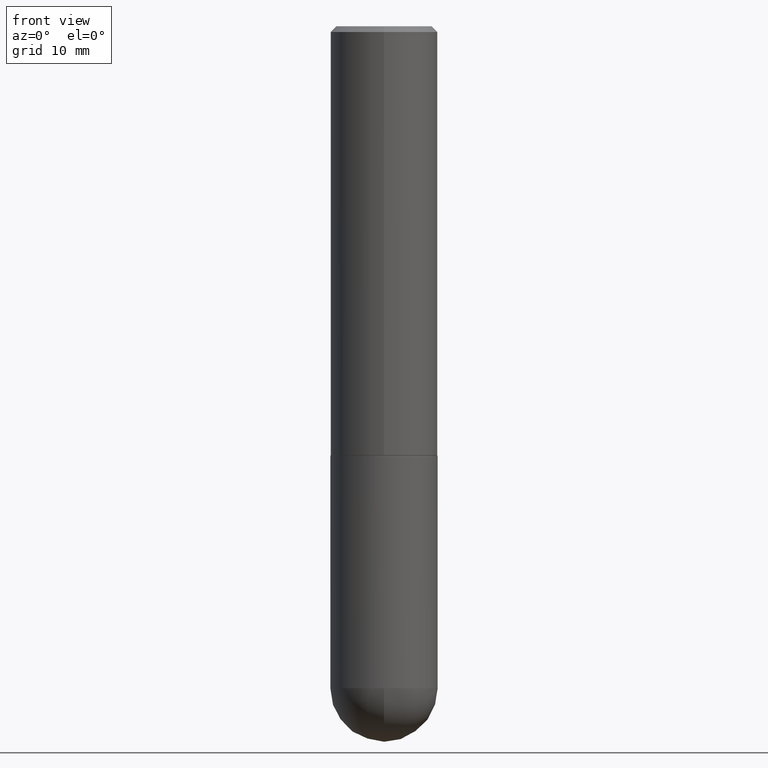
[diagram: clean part render]
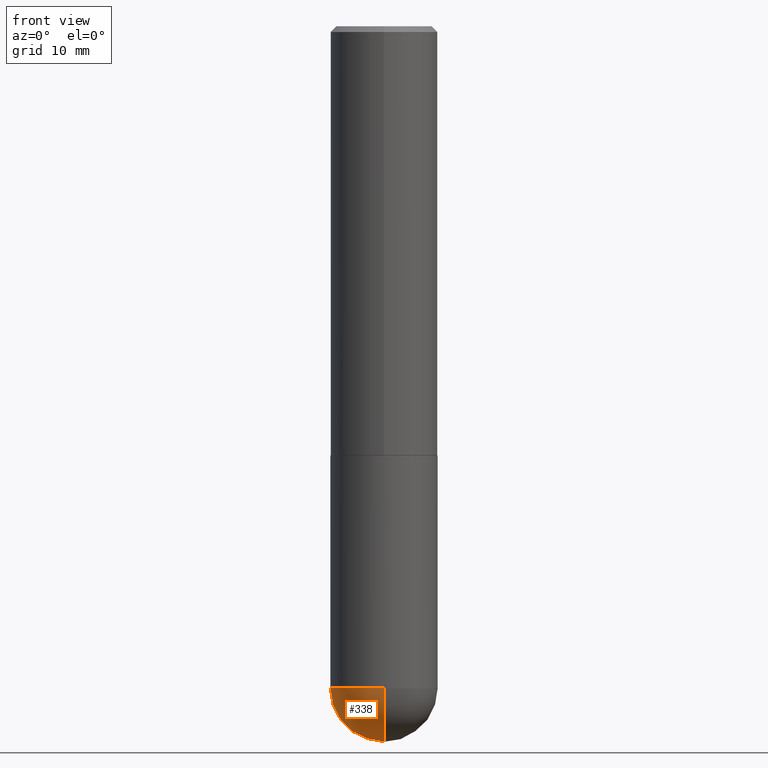
[diagram: same view with one face highlighted and labeled with its STEP entity id]
A machine part, front view. The second image highlights one B-rep face of the part: STEP entity #338.
In plain terms, the highlighted spherical surface has radius 4.7625 mm.
Its self-contained STEP definition (entity closure, byte-faithful):
#2 = DIRECTION ( 'NONE',  ( -1.000000000000000000, 7.105427357601001070E-15, -4.926315508542082329E-29 ) ) ;
#6 = EDGE_CURVE ( 'NONE', #332, #64, #237, .T. ) ;
#8 = CIRCLE ( 'NONE', #225, 0.1875000000000003331 ) ;
#23 = EDGE_LOOP ( 'NONE', ( #132, #314, #334, #197 ) ) ;
#32 = CARTESIAN_POINT ( 'NONE',  ( 5.655146614303128380E-29, -8.074050596074775072E-15, -2.312500000000000000 ) ) ;
#36 = SPHERICAL_SURFACE ( 'NONE', #311, 0.1875000000000003331 ) ;
#64 = VERTEX_POINT ( 'NONE', #82 ) ;
#67 = DIRECTION ( 'NONE',  ( -2.445468806185136597E-29, 3.491481338843145583E-15, 1.000000000000000000 ) ) ;
#68 = CARTESIAN_POINT ( 'NONE',  ( 5.655146614303128380E-29, -8.074050596074775072E-15, -2.312500000000000000 ) ) ;
#71 = VERTEX_POINT ( 'NONE', #213 ) ;
#82 = CARTESIAN_POINT ( 'NONE',  ( 1.309305502066231017E-15, 0.1874999999999918954, -2.312500000000000444 ) ) ;
#90 = DIRECTION ( 'NONE',  ( -2.445468806185136597E-29, 3.491481338843145583E-15, 1.000000000000000000 ) ) ;
#97 = DIRECTION ( 'NONE',  ( 6.982962677686265922E-15, 1.000000000000000000, 0.000000000000000000 ) ) ;
#99 = CARTESIAN_POINT ( 'NONE',  ( 5.324026836389243254E-29, -8.548232964214825368E-15, -2.312500000000000000 ) ) ;
#102 = CIRCLE ( 'NONE', #391, 0.1875000000000000555 ) ;
#121 = DIRECTION ( 'NONE',  ( 1.000000000000000000, -6.982962677686270655E-15, 0.000000000000000000 ) ) ;
#124 = EDGE_CURVE ( 'NONE', #64, #71, #273, .T. ) ;
#132 = ORIENTED_EDGE ( 'NONE', *, *, #6, .F. ) ;
#148 = CARTESIAN_POINT ( 'NONE',  ( 5.790569421510013204E-29, -9.191404651505909607E-15, -2.500000000000000000 ) ) ;
#157 = CARTESIAN_POINT ( 'NONE',  ( 5.324026836389243254E-29, -8.548232964214825368E-15, -2.312500000000000000 ) ) ;
#159 = CARTESIAN_POINT ( 'NONE',  ( 5.324026836389243254E-29, -8.548232964214825368E-15, -2.312500000000000000 ) ) ;
#197 = ORIENTED_EDGE ( 'NONE', *, *, #124, .F. ) ;
#198 = DIRECTION ( 'NONE',  ( -7.105427357600999492E-15, -1.000000000000000000, 0.000000000000000000 ) ) ;
#213 = CARTESIAN_POINT ( 'NONE',  ( -0.1875000000000000555, -5.323368672619559170E-15, -2.312500000000000000 ) ) ;
#225 = AXIS2_PLACEMENT_3D ( 'NONE', #99, #2, #198 ) ;
#230 = VERTEX_POINT ( 'NONE', #253 ) ;
#237 = CIRCLE ( 'NONE', #354, 0.1875000000000003331 ) ;
#253 = CARTESIAN_POINT ( 'NONE',  ( -1.332267629550134009E-15, -0.1875000000000084932, -2.312499999999999556 ) ) ;
#273 = CIRCLE ( 'NONE', #335, 0.1875000000000000555 ) ;
#285 = DIRECTION ( 'NONE',  ( -1.000000000000000000, 6.982962677686266711E-15, -4.883557194083113462E-29 ) ) ;
#311 = AXIS2_PLACEMENT_3D ( 'NONE', #157, #285, #406 ) ;
#314 = ORIENTED_EDGE ( 'NONE', *, *, #363, .T. ) ;
#315 = DIRECTION ( 'NONE',  ( 1.000000000000000000, -6.982962677686270655E-15, 0.000000000000000000 ) ) ;
#332 = VERTEX_POINT ( 'NONE', #148 ) ;
#334 = ORIENTED_EDGE ( 'NONE', *, *, #341, .F. ) ;
#335 = AXIS2_PLACEMENT_3D ( 'NONE', #68, #90, #315 ) ;
#338 = ADVANCED_FACE ( 'NONE', ( #404 ), #36, .T. ) ;
#341 = EDGE_CURVE ( 'NONE', #71, #230, #102, .T. ) ;
#354 = AXIS2_PLACEMENT_3D ( 'NONE', #159, #385, #97 ) ;
#363 = EDGE_CURVE ( 'NONE', #332, #230, #8, .T. ) ;
#385 = DIRECTION ( 'NONE',  ( 1.000000000000000000, -6.982962677686265922E-15, 4.883557194083112340E-29 ) ) ;
#391 = AXIS2_PLACEMENT_3D ( 'NONE', #32, #67, #121 ) ;
#404 = FACE_OUTER_BOUND ( 'NONE', #23, .T. ) ;
#406 = DIRECTION ( 'NONE',  ( 6.982962677686266711E-15, 1.000000000000000000, -2.913971193241875639E-15 ) ) ;